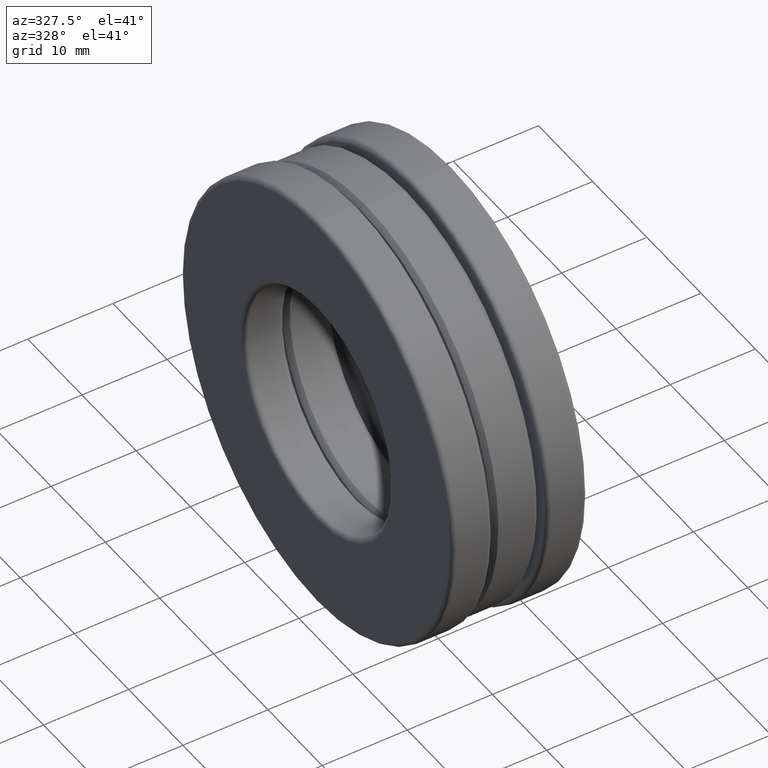
[diagram: clean part render]
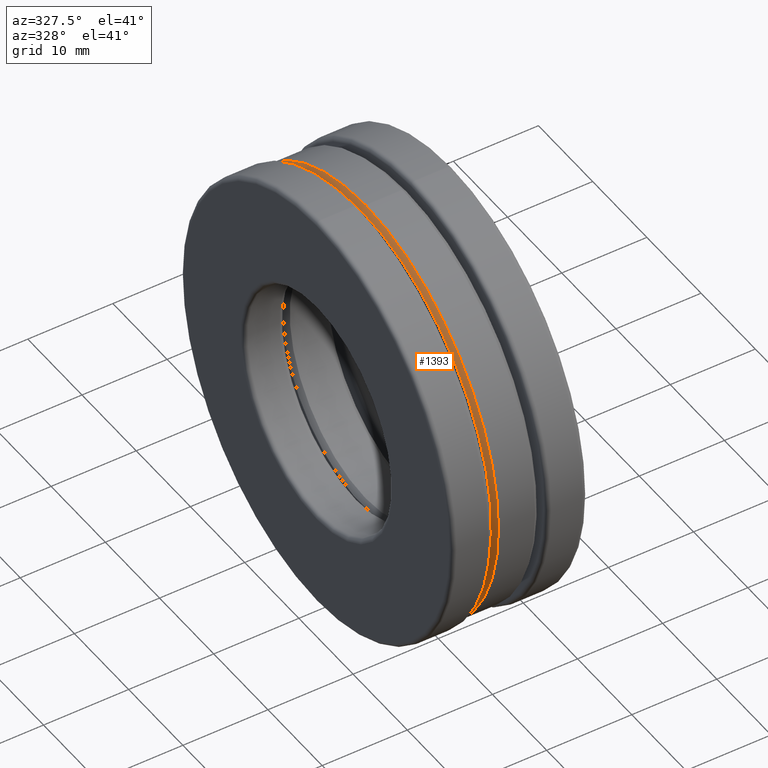
[diagram: same view with one face highlighted and labeled with its STEP entity id]
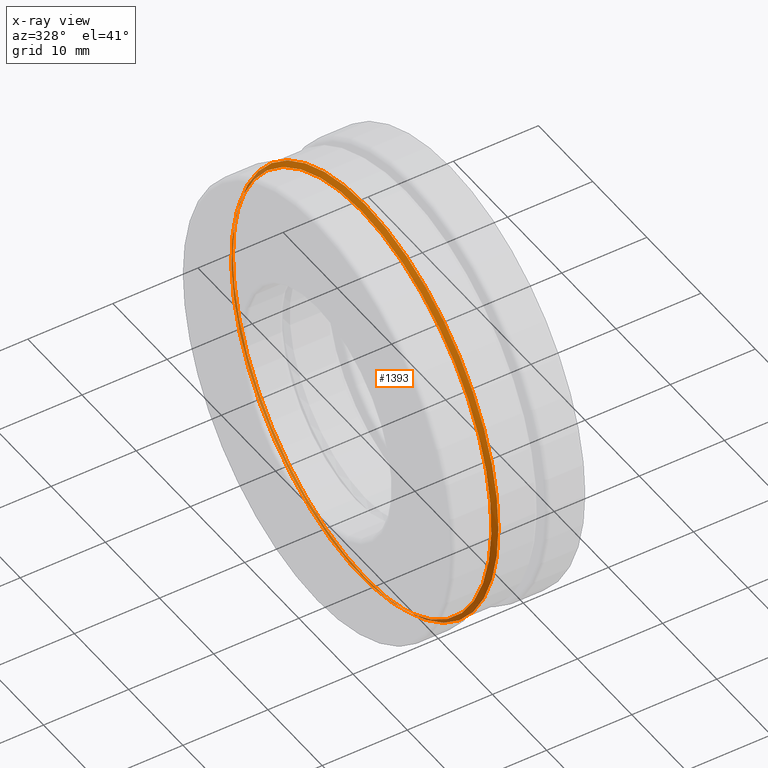
[diagram: x-ray of the same camera — body ghosted, the highlighted face saturated]
A machine part, auxiliary view. The second image highlights one B-rep face of the part: STEP entity #1393.
The next image is the same camera in x-ray: the body ghosted, the highlighted face saturated — about 22% of this face is hidden behind the body in this view.
In plain terms, the highlighted conical surface has half-angle 45 deg.
Its self-contained STEP definition (entity closure, byte-faithful):
#1 = FACE_BOUND ( 'NONE', #1306, .T. ) ;
#17 = DIRECTION ( 'NONE',  ( 1.000000000000000000, 0.0000000000000000000, 0.0000000000000000000 ) ) ;
#30 = EDGE_LOOP ( 'NONE', ( #448 ) ) ;
#64 = DIRECTION ( 'NONE',  ( 0.0000000000000000000, 0.0000000000000000000, 1.000000000000000000 ) ) ;
#194 = VERTEX_POINT ( 'NONE', #439 ) ;
#439 = CARTESIAN_POINT ( 'NONE',  ( -0.08500000000000002000, 0.0000000000000000000, 0.9643749999999997600 ) ) ;
#448 = ORIENTED_EDGE ( 'NONE', *, *, #983, .T. ) ;
#508 = ORIENTED_EDGE ( 'NONE', *, *, #762, .F. ) ;
#679 = DIRECTION ( 'NONE',  ( 0.0000000000000000000, 0.0000000000000000000, -1.000000000000000000 ) ) ;
#762 = EDGE_CURVE ( 'NONE', #1278, #1278, #1158, .T. ) ;
#798 = CARTESIAN_POINT ( 'NONE',  ( -0.1050000000000000100, 0.0000000000000000000, 0.9443749999999995200 ) ) ;
#858 = DIRECTION ( 'NONE',  ( 0.0000000000000000000, 0.0000000000000000000, 1.000000000000000000 ) ) ;
#962 = FACE_OUTER_BOUND ( 'NONE', #30, .T. ) ;
#981 = AXIS2_PLACEMENT_3D ( 'NONE', #1429, #1203, #858 ) ;
#983 = EDGE_CURVE ( 'NONE', #194, #194, #1135, .T. ) ;
#1058 = DIRECTION ( 'NONE',  ( -1.000000000000000000, -0.0000000000000000000, -0.0000000000000000000 ) ) ;
#1135 = CIRCLE ( 'NONE', #981, 0.9643749999999997600 ) ;
#1157 = CONICAL_SURFACE ( 'NONE', #1449, 0.9443749999999995200, 0.7853981633974533900 ) ;
#1158 = CIRCLE ( 'NONE', #1336, 0.9443749999999995200 ) ;
#1203 = DIRECTION ( 'NONE',  ( -1.000000000000000000, -0.0000000000000000000, -0.0000000000000000000 ) ) ;
#1250 = CARTESIAN_POINT ( 'NONE',  ( -0.1050000000000000100, 0.0000000000000000000, 0.0000000000000000000 ) ) ;
#1278 = VERTEX_POINT ( 'NONE', #798 ) ;
#1293 = CARTESIAN_POINT ( 'NONE',  ( -0.1050000000000000100, 0.0000000000000000000, 0.0000000000000000000 ) ) ;
#1306 = EDGE_LOOP ( 'NONE', ( #508 ) ) ;
#1336 = AXIS2_PLACEMENT_3D ( 'NONE', #1293, #1058, #64 ) ;
#1393 = ADVANCED_FACE ( 'NONE', ( #962, #1 ), #1157, .T. ) ;
#1429 = CARTESIAN_POINT ( 'NONE',  ( -0.08500000000000002000, 0.0000000000000000000, 0.0000000000000000000 ) ) ;
#1449 = AXIS2_PLACEMENT_3D ( 'NONE', #1250, #17, #679 ) ;